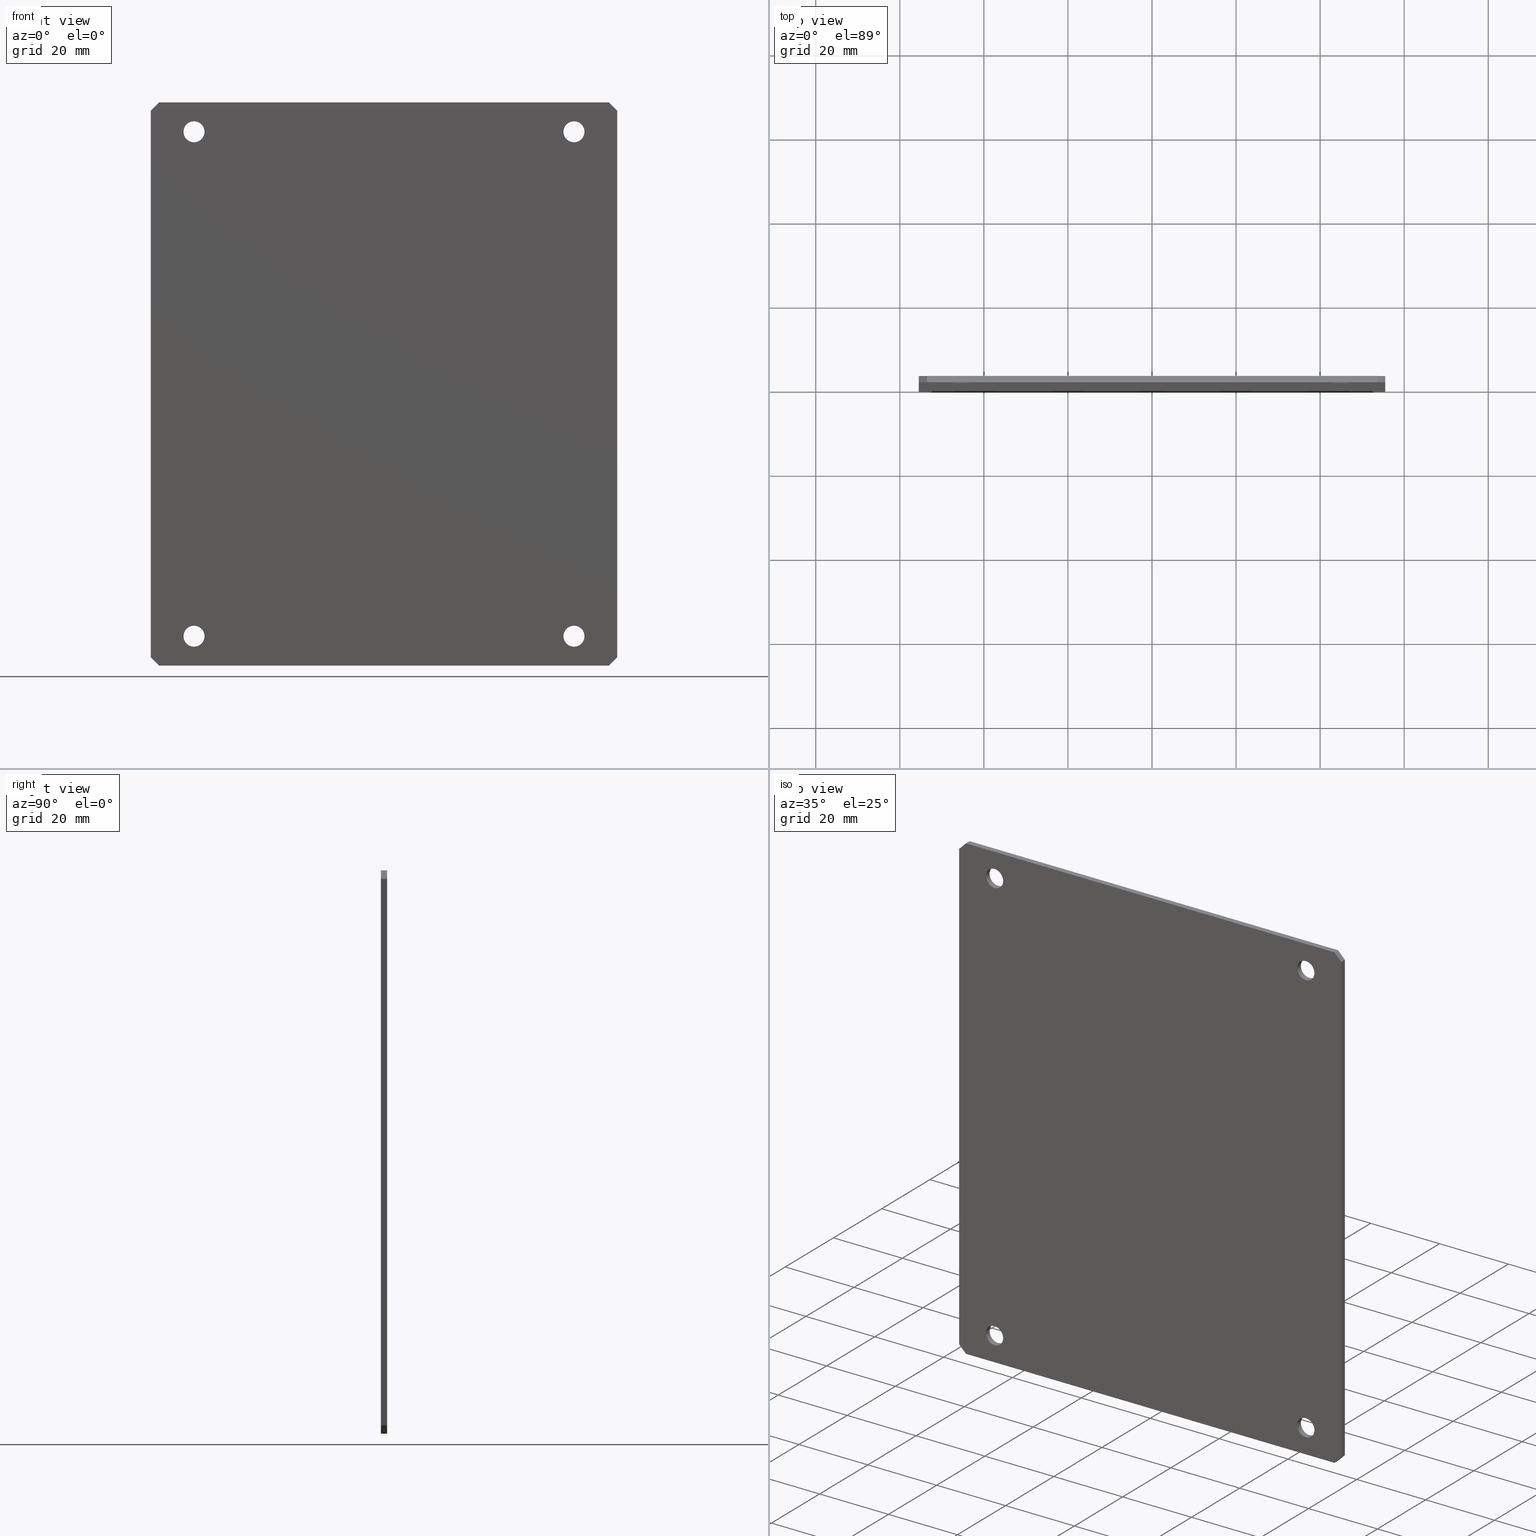
[diagram: canonical four-view strip — front | top / right | iso, engineering-drawing reading convention]
A machine part, canonical four-view strip (front | top / right | iso — engineering-drawing reading convention). The complete STEP part file that produces these views, byte-faithful:
ISO-10303-21;
HEADER;
FILE_DESCRIPTION (( 'STEP AP214' ),
    '1' );
FILE_NAME ('TM 1216.STEP',
    '2010-02-17T12:26:09',
    ( 'KennethW' ),
    ( 'FIBOX' ),
    'SwSTEP 2.0',
    'SolidWorks 2009',
    '' );
FILE_SCHEMA (( 'AUTOMOTIVE_DESIGN' ));
ENDSEC;

DATA;
#1 = ORIENTED_EDGE ( 'NONE', *, *, #64, .T. ) ;
#2 = ORIENTED_EDGE ( 'NONE', *, *, #88, .F. ) ;
#3 = EDGE_CURVE ( 'NONE', #31, #138, #164, .T. ) ;
#4 = EDGE_LOOP ( 'NONE', ( #5, #6 ) ) ;
#5 = ORIENTED_EDGE ( 'NONE', *, *, #37, .T. ) ;
#6 = ORIENTED_EDGE ( 'NONE', *, *, #7, .T. ) ;
#7 = EDGE_CURVE ( 'NONE', #35, #38, #322, .T. ) ;
#8 = EDGE_LOOP ( 'NONE', ( #372, #267, #182, #300 ) ) ;
#9 = EDGE_CURVE ( 'NONE', #10, #11, #323, .T. ) ;
#10 = VERTEX_POINT ( 'NONE', #315 ) ;
#11 = VERTEX_POINT ( 'NONE', #314 ) ;
#12 = ORIENTED_EDGE ( 'NONE', *, *, #13, .F. ) ;
#13 = EDGE_CURVE ( 'NONE', #14, #10, #313, .T. ) ;
#14 = VERTEX_POINT ( 'NONE', #309 ) ;
#15 = ORIENTED_EDGE ( 'NONE', *, *, #16, .F. ) ;
#16 = EDGE_CURVE ( 'NONE', #17, #14, #308, .T. ) ;
#17 = VERTEX_POINT ( 'NONE', #304 ) ;
#18 = ORIENTED_EDGE ( 'NONE', *, *, #19, .F. ) ;
#19 = EDGE_CURVE ( 'NONE', #20, #17, #303, .T. ) ;
#20 = VERTEX_POINT ( 'NONE', #368 ) ;
#21 = ORIENTED_EDGE ( 'NONE', *, *, #185, .F. ) ;
#22 = VERTEX_POINT ( 'NONE', #367 ) ;
#23 = ADVANCED_FACE ( 'NONE', ( #366 ), #365, .F. ) ;
#24 = EDGE_LOOP ( 'NONE', ( #25, #29, #135, #139 ) ) ;
#25 = ORIENTED_EDGE ( 'NONE', *, *, #26, .T. ) ;
#26 = EDGE_CURVE ( 'NONE', #27, #28, #359, .T. ) ;
#27 = VERTEX_POINT ( 'NONE', #360 ) ;
#28 = VERTEX_POINT ( 'NONE', #266 ) ;
#29 = ORIENTED_EDGE ( 'NONE', *, *, #30, .T. ) ;
#30 = EDGE_CURVE ( 'NONE', #28, #31, #265, .T. ) ;
#31 = VERTEX_POINT ( 'NONE', #261 ) ;
#32 = EDGE_LOOP ( 'NONE', ( #155, #159, #36, #39 ) ) ;
#33 = MANIFOLD_SOLID_BREP ( 'NONE', #337 ) ;
#34 = EDGE_CURVE ( 'NONE', #158, #35, #245, .T. ) ;
#35 = VERTEX_POINT ( 'NONE', #296 ) ;
#36 = ORIENTED_EDGE ( 'NONE', *, *, #37, .F. ) ;
#37 = EDGE_CURVE ( 'NONE', #38, #35, #295, .T. ) ;
#38 = VERTEX_POINT ( 'NONE', #290 ) ;
#39 = ORIENTED_EDGE ( 'NONE', *, *, #40, .F. ) ;
#40 = EDGE_CURVE ( 'NONE', #157, #38, #289, .T. ) ;
#41 = ADVANCED_FACE ( 'NONE', ( #285 ), #283, .F. ) ;
#42 = ADVANCED_FACE ( 'NONE', ( #284 ), #278, .F. ) ;
#43 = EDGE_LOOP ( 'NONE', ( #44, #45, #47, #48 ) ) ;
#44 = ORIENTED_EDGE ( 'NONE', *, *, #220, .T. ) ;
#45 = ORIENTED_EDGE ( 'NONE', *, *, #46, .F. ) ;
#46 = EDGE_CURVE ( 'NONE', #160, #22, #273, .T. ) ;
#47 = ORIENTED_EDGE ( 'NONE', *, *, #91, .F. ) ;
#48 = ORIENTED_EDGE ( 'NONE', *, *, #71, .T. ) ;
#49 = ADVANCED_FACE ( 'NONE', ( #244 ), #243, .F. ) ;
#50 = EDGE_LOOP ( 'NONE', ( #51, #54, #56, #57 ) ) ;
#51 = ORIENTED_EDGE ( 'NONE', *, *, #185, .T. ) ;
#52 = EDGE_CURVE ( 'NONE', #79, #93, #237, .T. ) ;
#53 = EDGE_LOOP ( 'NONE', ( #183, #184 ) ) ;
#54 = ORIENTED_EDGE ( 'NONE', *, *, #55, .F. ) ;
#55 = EDGE_CURVE ( 'NONE', #101, #20, #233, .T. ) ;
#56 = ORIENTED_EDGE ( 'NONE', *, *, #100, .F. ) ;
#57 = ORIENTED_EDGE ( 'NONE', *, *, #46, .T. ) ;
#58 = ADVANCED_FACE ( 'NONE', ( #229 ), #228, .F. ) ;
#59 = EDGE_LOOP ( 'NONE', ( #169, #170, #166, #167 ) ) ;
#60 = EDGE_CURVE ( 'NONE', #148, #151, #219, .T. ) ;
#61 = ADVANCED_FACE ( 'NONE', ( #214 ), #213, .F. ) ;
#62 = ORIENTED_EDGE ( 'NONE', *, *, #74, .T. ) ;
#63 = ORIENTED_EDGE ( 'NONE', *, *, #64, .F. ) ;
#64 = EDGE_CURVE ( 'NONE', #86, #181, #348, .T. ) ;
#65 = ORIENTED_EDGE ( 'NONE', *, *, #123, .F. ) ;
#66 = ORIENTED_EDGE ( 'NONE', *, *, #371, .T. ) ;
#67 = ADVANCED_FACE ( 'NONE', ( #344 ), #343, .F. ) ;
#68 = EDGE_LOOP ( 'NONE', ( #69, #70, #2, #1 ) ) ;
#69 = ORIENTED_EDGE ( 'NONE', *, *, #223, .T. ) ;
#70 = ORIENTED_EDGE ( 'NONE', *, *, #71, .F. ) ;
#71 = EDGE_CURVE ( 'NONE', #89, #221, #202, .T. ) ;
#72 = ORIENTED_EDGE ( 'NONE', *, *, #60, .T. ) ;
#73 = ORIENTED_EDGE ( 'NONE', *, *, #74, .F. ) ;
#74 = EDGE_CURVE ( 'NONE', #11, #181, #197, .T. ) ;
#75 = EDGE_LOOP ( 'NONE', ( #76, #77 ) ) ;
#76 = ORIENTED_EDGE ( 'NONE', *, *, #81, .T. ) ;
#77 = ORIENTED_EDGE ( 'NONE', *, *, #3, .T. ) ;
#78 = ADVANCED_FACE ( 'NONE', ( #408, #383, #396, #410, #385 ), #401, .F. ) ;
#79 = VERTEX_POINT ( 'NONE', #391 ) ;
#80 = ORIENTED_EDGE ( 'NONE', *, *, #129, .T. ) ;
#81 = EDGE_CURVE ( 'NONE', #138, #31, #389, .T. ) ;
#82 = ORIENTED_EDGE ( 'NONE', *, *, #126, .F. ) ;
#83 = EDGE_LOOP ( 'NONE', ( #127, #122, #87, #90, #161, #102, #105, #108 ) ) ;
#84 = ADVANCED_FACE ( 'NONE', ( #390 ), #382, .F. ) ;
#85 = EDGE_CURVE ( 'NONE', #137, #79, #405, .T. ) ;
#86 = VERTEX_POINT ( 'NONE', #380 ) ;
#87 = ORIENTED_EDGE ( 'NONE', *, *, #88, .T. ) ;
#88 = EDGE_CURVE ( 'NONE', #86, #89, #379, .T. ) ;
#89 = VERTEX_POINT ( 'NONE', #375 ) ;
#90 = ORIENTED_EDGE ( 'NONE', *, *, #91, .T. ) ;
#91 = EDGE_CURVE ( 'NONE', #89, #160, #395, .T. ) ;
#92 = EDGE_CURVE ( 'NONE', #93, #79, #198, .T. ) ;
#93 = VERTEX_POINT ( 'NONE', #420 ) ;
#94 = EDGE_CURVE ( 'NONE', #28, #27, #429, .T. ) ;
#95 = ORIENTED_EDGE ( 'NONE', *, *, #156, .F. ) ;
#96 = ORIENTED_EDGE ( 'NONE', *, *, #97, .F. ) ;
#97 = EDGE_CURVE ( 'NONE', #158, #157, #424, .T. ) ;
#98 = PRODUCT_DEFINITION_CONTEXT ( 'detailed design', #419, 'design' ) ;
#99 = EDGE_LOOP ( 'NONE', ( #115, #72 ) ) ;
#100 = EDGE_CURVE ( 'NONE', #160, #101, #630, .T. ) ;
#101 = VERTEX_POINT ( 'NONE', #626 ) ;
#102 = ORIENTED_EDGE ( 'NONE', *, *, #103, .T. ) ;
#103 = EDGE_CURVE ( 'NONE', #101, #104, #625, .T. ) ;
#104 = VERTEX_POINT ( 'NONE', #621 ) ;
#105 = ORIENTED_EDGE ( 'NONE', *, *, #106, .T. ) ;
#106 = EDGE_CURVE ( 'NONE', #104, #107, #620, .T. ) ;
#107 = VERTEX_POINT ( 'NONE', #616 ) ;
#108 = ORIENTED_EDGE ( 'NONE', *, *, #109, .T. ) ;
#109 = EDGE_CURVE ( 'NONE', #107, #120, #615, .T. ) ;
#110 = EDGE_LOOP ( 'NONE', ( #111, #112 ) ) ;
#111 = ORIENTED_EDGE ( 'NONE', *, *, #26, .F. ) ;
#112 = ORIENTED_EDGE ( 'NONE', *, *, #94, .F. ) ;
#113 = EDGE_LOOP ( 'NONE', ( #95, #96 ) ) ;
#114 = ADVANCED_FACE ( 'NONE', ( #611, #610, #609, #608, #607 ), #606, .T. ) ;
#115 = ORIENTED_EDGE ( 'NONE', *, *, #150, .T. ) ;
#116 = ORIENTED_EDGE ( 'NONE', *, *, #92, .F. ) ;
#117 = EDGE_LOOP ( 'NONE', ( #118, #82 ) ) ;
#118 = ORIENTED_EDGE ( 'NONE', *, *, #129, .F. ) ;
#119 = ORIENTED_EDGE ( 'NONE', *, *, #140, .F. ) ;
#120 = VERTEX_POINT ( 'NONE', #601 ) ;
#121 = VERTEX_POINT ( 'NONE', #600 ) ;
#122 = ORIENTED_EDGE ( 'NONE', *, *, #123, .T. ) ;
#123 = EDGE_CURVE ( 'NONE', #121, #86, #568, .T. ) ;
#124 = ORIENTED_EDGE ( 'NONE', *, *, #125, .F. ) ;
#125 = EDGE_CURVE ( 'NONE', #145, #144, #564, .T. ) ;
#126 = EDGE_CURVE ( 'NONE', #137, #136, #559, .T. ) ;
#127 = ORIENTED_EDGE ( 'NONE', *, *, #128, .T. ) ;
#128 = EDGE_CURVE ( 'NONE', #120, #121, #554, .T. ) ;
#129 = EDGE_CURVE ( 'NONE', #136, #137, #550, .T. ) ;
#130 = EDGE_CURVE ( 'NONE', #27, #138, #545, .T. ) ;
#131 = ORIENTED_EDGE ( 'NONE', *, *, #85, .T. ) ;
#132 = EDGE_LOOP ( 'NONE', ( #80, #131, #116, #119 ) ) ;
#133 = EDGE_LOOP ( 'NONE', ( #134, #124 ) ) ;
#134 = ORIENTED_EDGE ( 'NONE', *, *, #143, .F. ) ;
#135 = ORIENTED_EDGE ( 'NONE', *, *, #81, .F. ) ;
#136 = VERTEX_POINT ( 'NONE', #541 ) ;
#137 = VERTEX_POINT ( 'NONE', #540 ) ;
#138 = VERTEX_POINT ( 'NONE', #539 ) ;
#139 = ORIENTED_EDGE ( 'NONE', *, *, #130, .F. ) ;
#140 = EDGE_CURVE ( 'NONE', #136, #93, #538, .T. ) ;
#141 = EDGE_LOOP ( 'NONE', ( #142, #146, #149, #152 ) ) ;
#142 = ORIENTED_EDGE ( 'NONE', *, *, #143, .T. ) ;
#143 = EDGE_CURVE ( 'NONE', #144, #145, #597, .T. ) ;
#144 = VERTEX_POINT ( 'NONE', #592 ) ;
#145 = VERTEX_POINT ( 'NONE', #591 ) ;
#146 = ORIENTED_EDGE ( 'NONE', *, *, #147, .T. ) ;
#147 = EDGE_CURVE ( 'NONE', #145, #148, #590, .T. ) ;
#148 = VERTEX_POINT ( 'NONE', #586 ) ;
#149 = ORIENTED_EDGE ( 'NONE', *, *, #150, .F. ) ;
#150 = EDGE_CURVE ( 'NONE', #151, #148, #585, .T. ) ;
#151 = VERTEX_POINT ( 'NONE', #580 ) ;
#152 = ORIENTED_EDGE ( 'NONE', *, *, #153, .F. ) ;
#153 = EDGE_CURVE ( 'NONE', #144, #151, #579, .T. ) ;
#154 = ADVANCED_FACE ( 'NONE', ( #575 ), #574, .F. ) ;
#155 = ORIENTED_EDGE ( 'NONE', *, *, #156, .T. ) ;
#156 = EDGE_CURVE ( 'NONE', #157, #158, #569, .T. ) ;
#157 = VERTEX_POINT ( 'NONE', #439 ) ;
#158 = VERTEX_POINT ( 'NONE', #438 ) ;
#159 = ORIENTED_EDGE ( 'NONE', *, *, #34, .T. ) ;
#160 = VERTEX_POINT ( 'NONE', #437 ) ;
#161 = ORIENTED_EDGE ( 'NONE', *, *, #100, .T. ) ;
#162 = CARTESIAN_POINT ( 'NONE',  ( 45.20000000000000300, 0.0000000000000000000, -59.99999999999999300 ) ) ;
#163 = AXIS2_PLACEMENT_3D ( 'NONE', #162, #325, #324 ) ;
#164 = CIRCLE ( 'NONE', #163, 2.500000000000002200 ) ;
#165 = CARTESIAN_POINT ( 'NONE',  ( -45.20000000000000300, 0.0000000000000000000, 60.00000000000000700 ) ) ;
#166 = ORIENTED_EDGE ( 'NONE', *, *, #103, .F. ) ;
#167 = ORIENTED_EDGE ( 'NONE', *, *, #55, .T. ) ;
#168 = EDGE_LOOP ( 'NONE', ( #329, #330, #332, #333 ) ) ;
#169 = ORIENTED_EDGE ( 'NONE', *, *, #19, .T. ) ;
#170 = ORIENTED_EDGE ( 'NONE', *, *, #171, .F. ) ;
#171 = EDGE_CURVE ( 'NONE', #104, #17, #436, .T. ) ;
#172 = ORIENTED_EDGE ( 'NONE', *, *, #130, .T. ) ;
#173 = ORIENTED_EDGE ( 'NONE', *, *, #3, .F. ) ;
#174 = ADVANCED_FACE ( 'NONE', ( #432 ), #535, .F. ) ;
#175 = EDGE_LOOP ( 'NONE', ( #176, #177, #178, #179 ) ) ;
#176 = ORIENTED_EDGE ( 'NONE', *, *, #147, .F. ) ;
#177 = ORIENTED_EDGE ( 'NONE', *, *, #125, .T. ) ;
#178 = ORIENTED_EDGE ( 'NONE', *, *, #153, .T. ) ;
#179 = ORIENTED_EDGE ( 'NONE', *, *, #60, .F. ) ;
#180 = ADVANCED_FACE ( 'NONE', ( #536 ), #531, .F. ) ;
#181 = VERTEX_POINT ( 'NONE', #529 ) ;
#182 = ORIENTED_EDGE ( 'NONE', *, *, #128, .F. ) ;
#183 = ORIENTED_EDGE ( 'NONE', *, *, #92, .T. ) ;
#184 = ORIENTED_EDGE ( 'NONE', *, *, #52, .T. ) ;
#185 = EDGE_CURVE ( 'NONE', #22, #20, #525, .T. ) ;
#186 = ORIENTED_EDGE ( 'NONE', *, *, #220, .F. ) ;
#187 = EDGE_LOOP ( 'NONE', ( #188, #189, #190, #191 ) ) ;
#188 = ORIENTED_EDGE ( 'NONE', *, *, #85, .F. ) ;
#189 = ORIENTED_EDGE ( 'NONE', *, *, #126, .T. ) ;
#190 = ORIENTED_EDGE ( 'NONE', *, *, #140, .T. ) ;
#191 = ORIENTED_EDGE ( 'NONE', *, *, #52, .F. ) ;
#192 = CARTESIAN_POINT ( 'NONE',  ( -45.20000000000000300, 0.0000000000000000000, -59.99999999999999300 ) ) ;
#193 = AXIS2_PLACEMENT_3D ( 'NONE', #192, #373, #374 ) ;
#194 = DIRECTION ( 'NONE',  ( -0.0000000000000000000, -0.0000000000000000000, 1.000000000000000000 ) ) ;
#195 = VECTOR ( 'NONE', #194, 1000.000000000000000 ) ;
#196 = CARTESIAN_POINT ( 'NONE',  ( -55.49999999999999300, 0.0000000000000000000, 65.00000000000000000 ) ) ;
#197 = LINE ( 'NONE', #196, #195 ) ;
#198 = CIRCLE ( 'NONE', #193, 2.500000000000002200 ) ;
#199 = DIRECTION ( 'NONE',  ( -0.0000000000000000000, -1.000000000000000000, -0.0000000000000000000 ) ) ;
#200 = VECTOR ( 'NONE', #199, 1000.000000000000000 ) ;
#201 = CARTESIAN_POINT ( 'NONE',  ( -53.49999999999999300, 1.500000000000000000, 67.00000000000000000 ) ) ;
#202 = LINE ( 'NONE', #201, #200 ) ;
#203 = EDGE_LOOP ( 'NONE', ( #204, #205, #206, #207 ) ) ;
#204 = ORIENTED_EDGE ( 'NONE', *, *, #13, .T. ) ;
#205 = ORIENTED_EDGE ( 'NONE', *, *, #301, .F. ) ;
#206 = ORIENTED_EDGE ( 'NONE', *, *, #109, .F. ) ;
#207 = ORIENTED_EDGE ( 'NONE', *, *, #331, .T. ) ;
#208 = ADVANCED_FACE ( 'NONE', ( #521 ), #520, .F. ) ;
#209 = DIRECTION ( 'NONE',  ( 0.0000000000000000000, 0.0000000000000000000, -1.000000000000000000 ) ) ;
#210 = DIRECTION ( 'NONE',  ( 1.000000000000000000, -0.0000000000000000000, 0.0000000000000000000 ) ) ;
#211 = CARTESIAN_POINT ( 'NONE',  ( -55.49999999999999300, 1.500000000000000000, 65.00000000000000000 ) ) ;
#212 = AXIS2_PLACEMENT_3D ( 'NONE', #211, #210, #209 ) ;
#213 = PLANE ( 'NONE',  #212 ) ;
#214 = FACE_OUTER_BOUND ( 'NONE', #268, .T. ) ;
#215 = DIRECTION ( 'NONE',  ( 0.0000000000000000000, 0.0000000000000000000, 1.000000000000000000 ) ) ;
#216 = DIRECTION ( 'NONE',  ( 0.0000000000000000000, 1.000000000000000000, 0.0000000000000000000 ) ) ;
#217 = CARTESIAN_POINT ( 'NONE',  ( 45.20000000000000300, 0.0000000000000000000, 60.00000000000000700 ) ) ;
#218 = AXIS2_PLACEMENT_3D ( 'NONE', #217, #216, #215 ) ;
#219 = CIRCLE ( 'NONE', #218, 2.500000000000009300 ) ;
#220 = EDGE_CURVE ( 'NONE', #221, #22, #515, .T. ) ;
#221 = VERTEX_POINT ( 'NONE', #511 ) ;
#222 = ORIENTED_EDGE ( 'NONE', *, *, #223, .F. ) ;
#223 = EDGE_CURVE ( 'NONE', #181, #221, #510, .T. ) ;
#224 = DIRECTION ( 'NONE',  ( 0.0000000000000000000, 0.0000000000000000000, 1.000000000000000000 ) ) ;
#225 = DIRECTION ( 'NONE',  ( -1.000000000000000000, 0.0000000000000000000, 0.0000000000000000000 ) ) ;
#226 = CARTESIAN_POINT ( 'NONE',  ( 55.49999999999999300, 1.500000000000000000, 65.00000000000001400 ) ) ;
#227 = AXIS2_PLACEMENT_3D ( 'NONE', #226, #225, #224 ) ;
#228 = PLANE ( 'NONE',  #227 ) ;
#229 = FACE_OUTER_BOUND ( 'NONE', #59, .T. ) ;
#230 = DIRECTION ( 'NONE',  ( -0.0000000000000000000, -1.000000000000000000, -0.0000000000000000000 ) ) ;
#231 = VECTOR ( 'NONE', #230, 1000.000000000000000 ) ;
#232 = CARTESIAN_POINT ( 'NONE',  ( 55.49999999999999300, 1.500000000000000000, 65.00000000000001400 ) ) ;
#233 = LINE ( 'NONE', #232, #231 ) ;
#234 = DIRECTION ( 'NONE',  ( 0.0000000000000000000, 0.0000000000000000000, 1.000000000000000000 ) ) ;
#235 = DIRECTION ( 'NONE',  ( 0.0000000000000000000, 1.000000000000000000, 0.0000000000000000000 ) ) ;
#236 = AXIS2_PLACEMENT_3D ( 'NONE', #241, #235, #234 ) ;
#237 = CIRCLE ( 'NONE', #236, 2.500000000000002200 ) ;
#238 = DIRECTION ( 'NONE',  ( -0.7071067811865500200, 0.0000000000000000000, 0.7071067811865451300 ) ) ;
#239 = DIRECTION ( 'NONE',  ( -0.7071067811865451300, 0.0000000000000000000, -0.7071067811865500200 ) ) ;
#240 = CARTESIAN_POINT ( 'NONE',  ( 55.49999999999999300, 1.500000000000000000, 65.00000000000001400 ) ) ;
#241 = CARTESIAN_POINT ( 'NONE',  ( -45.20000000000000300, 0.0000000000000000000, -59.99999999999999300 ) ) ;
#242 = AXIS2_PLACEMENT_3D ( 'NONE', #240, #239, #238 ) ;
#243 = PLANE ( 'NONE',  #242 ) ;
#244 = FACE_OUTER_BOUND ( 'NONE', #50, .T. ) ;
#245 = LINE ( 'NONE', #299, #298 ) ;
#246 =( GEOMETRIC_REPRESENTATION_CONTEXT ( 3 ) GLOBAL_UNCERTAINTY_ASSIGNED_CONTEXT ( ( #247 ) ) GLOBAL_UNIT_ASSIGNED_CONTEXT ( ( #250, #249, #248 ) ) REPRESENTATION_CONTEXT ( 'NONE', 'WORKASPACE' ) );
#247 = UNCERTAINTY_MEASURE_WITH_UNIT (LENGTH_MEASURE( 1.000000000000000100E-005 ), #250, 'distance_accuracy_value', 'NONE');
#248 =( NAMED_UNIT ( * ) SI_UNIT ( $, .STERADIAN. ) SOLID_ANGLE_UNIT ( ) );
#249 =( NAMED_UNIT ( * ) PLANE_ANGLE_UNIT ( ) SI_UNIT ( $, .RADIAN. ) );
#250 =( LENGTH_UNIT ( ) NAMED_UNIT ( * ) SI_UNIT ( .MILLI., .METRE. ) );
#251 = MECHANICAL_DESIGN_GEOMETRIC_PRESENTATION_REPRESENTATION (  '', ( #253 ), #246 ) ;
#252 = PRESENTATION_LAYER_ASSIGNMENT (  '', '', ( #253 ) ) ;
#253 = STYLED_ITEM ( 'NONE', ( #254 ), #33 ) ;
#254 = PRESENTATION_STYLE_ASSIGNMENT (( #255 ) ) ;
#255 = SURFACE_STYLE_USAGE ( .BOTH. , #256 ) ;
#256 = SURFACE_SIDE_STYLE ('',( #257 ) ) ;
#257 = SURFACE_STYLE_FILL_AREA ( #258 ) ;
#258 = FILL_AREA_STYLE ('',( #259 ) ) ;
#259 = FILL_AREA_STYLE_COLOUR ( '', #260 ) ;
#260 = COLOUR_RGB ( '',0.7529411764705882200, 0.7529411764705882200, 0.7529411764705882200 ) ;
#261 = CARTESIAN_POINT ( 'NONE',  ( 45.20000000000000300, 0.0000000000000000000, -57.49999999999998600 ) ) ;
#262 = DIRECTION ( 'NONE',  ( -0.0000000000000000000, -1.000000000000000000, -0.0000000000000000000 ) ) ;
#263 = VECTOR ( 'NONE', #262, 1000.000000000000000 ) ;
#264 = CARTESIAN_POINT ( 'NONE',  ( 45.20000000000000300, 1.500000000000000000, -57.49999999999998600 ) ) ;
#265 = LINE ( 'NONE', #264, #263 ) ;
#266 = CARTESIAN_POINT ( 'NONE',  ( 45.20000000000000300, 1.500000000000000000, -57.49999999999998600 ) ) ;
#267 = ORIENTED_EDGE ( 'NONE', *, *, #371, .F. ) ;
#268 = EDGE_LOOP ( 'NONE', ( #62, #63, #65, #66 ) ) ;
#269 = EDGE_LOOP ( 'NONE', ( #338, #12, #15, #18, #21, #186, #222, #73 ) ) ;
#270 = DIRECTION ( 'NONE',  ( -0.0000000000000000000, -1.000000000000000000, -0.0000000000000000000 ) ) ;
#271 = VECTOR ( 'NONE', #270, 1000.000000000000000 ) ;
#272 = CARTESIAN_POINT ( 'NONE',  ( 53.49999999999999300, 1.500000000000000000, 67.00000000000000000 ) ) ;
#273 = LINE ( 'NONE', #272, #271 ) ;
#274 = DIRECTION ( 'NONE',  ( -1.000000000000000000, 0.0000000000000000000, -0.0000000000000000000 ) ) ;
#275 = DIRECTION ( 'NONE',  ( 0.0000000000000000000, 0.0000000000000000000, -1.000000000000000000 ) ) ;
#276 = CARTESIAN_POINT ( 'NONE',  ( 53.49999999999999300, 1.500000000000000000, 67.00000000000000000 ) ) ;
#277 = AXIS2_PLACEMENT_3D ( 'NONE', #276, #275, #274 ) ;
#278 = PLANE ( 'NONE',  #277 ) ;
#279 = DIRECTION ( 'NONE',  ( 0.0000000000000000000, 0.0000000000000000000, -1.000000000000000000 ) ) ;
#280 = DIRECTION ( 'NONE',  ( -0.0000000000000000000, -1.000000000000000000, -0.0000000000000000000 ) ) ;
#281 = CARTESIAN_POINT ( 'NONE',  ( 45.20000000000000300, 1.500000000000000000, 60.00000000000000700 ) ) ;
#282 = AXIS2_PLACEMENT_3D ( 'NONE', #281, #280, #279 ) ;
#283 = CYLINDRICAL_SURFACE ( 'NONE', #282, 2.500000000000002200 ) ;
#284 = FACE_OUTER_BOUND ( 'NONE', #43, .T. ) ;
#285 = FACE_OUTER_BOUND ( 'NONE', #141, .T. ) ;
#286 = DIRECTION ( 'NONE',  ( -0.0000000000000000000, -1.000000000000000000, -0.0000000000000000000 ) ) ;
#287 = VECTOR ( 'NONE', #286, 1000.000000000000000 ) ;
#288 = CARTESIAN_POINT ( 'NONE',  ( -45.20000000000000300, 1.500000000000000000, 57.50000000000000000 ) ) ;
#289 = LINE ( 'NONE', #288, #287 ) ;
#290 = CARTESIAN_POINT ( 'NONE',  ( -45.20000000000000300, 0.0000000000000000000, 57.50000000000000000 ) ) ;
#291 = DIRECTION ( 'NONE',  ( 0.0000000000000000000, 0.0000000000000000000, -1.000000000000000000 ) ) ;
#292 = DIRECTION ( 'NONE',  ( -0.0000000000000000000, 1.000000000000000000, -0.0000000000000000000 ) ) ;
#293 = CARTESIAN_POINT ( 'NONE',  ( -45.20000000000000300, 0.0000000000000000000, 60.00000000000000700 ) ) ;
#294 = AXIS2_PLACEMENT_3D ( 'NONE', #293, #292, #291 ) ;
#295 = CIRCLE ( 'NONE', #294, 2.500000000000002200 ) ;
#296 = CARTESIAN_POINT ( 'NONE',  ( -45.20000000000000300, 0.0000000000000000000, 62.50000000000001400 ) ) ;
#297 = DIRECTION ( 'NONE',  ( -0.0000000000000000000, -1.000000000000000000, -0.0000000000000000000 ) ) ;
#298 = VECTOR ( 'NONE', #297, 1000.000000000000000 ) ;
#299 = CARTESIAN_POINT ( 'NONE',  ( -45.20000000000000300, 1.500000000000000000, 62.50000000000001400 ) ) ;
#300 = ORIENTED_EDGE ( 'NONE', *, *, #301, .T. ) ;
#301 = EDGE_CURVE ( 'NONE', #120, #10, #476, .T. ) ;
#302 = CARTESIAN_POINT ( 'NONE',  ( 55.49999999999999300, 0.0000000000000000000, 65.00000000000001400 ) ) ;
#303 = LINE ( 'NONE', #302, #370 ) ;
#304 = CARTESIAN_POINT ( 'NONE',  ( 55.49999999999999300, 0.0000000000000000000, -65.00000000000001400 ) ) ;
#305 = DIRECTION ( 'NONE',  ( -0.7071067811865500200, 0.0000000000000000000, -0.7071067811865451300 ) ) ;
#306 = VECTOR ( 'NONE', #305, 1000.000000000000100 ) ;
#307 = CARTESIAN_POINT ( 'NONE',  ( 55.49999999999999300, 0.0000000000000000000, -65.00000000000001400 ) ) ;
#308 = LINE ( 'NONE', #307, #306 ) ;
#309 = CARTESIAN_POINT ( 'NONE',  ( 53.49999999999999300, 0.0000000000000000000, -67.00000000000000000 ) ) ;
#310 = DIRECTION ( 'NONE',  ( -1.000000000000000000, 0.0000000000000000000, 0.0000000000000000000 ) ) ;
#311 = VECTOR ( 'NONE', #310, 1000.000000000000000 ) ;
#312 = CARTESIAN_POINT ( 'NONE',  ( 53.49999999999999300, 0.0000000000000000000, -67.00000000000000000 ) ) ;
#313 = LINE ( 'NONE', #312, #311 ) ;
#314 = CARTESIAN_POINT ( 'NONE',  ( -55.49999999999999300, 0.0000000000000000000, -65.00000000000000000 ) ) ;
#315 = CARTESIAN_POINT ( 'NONE',  ( -53.49999999999999300, 0.0000000000000000000, -67.00000000000000000 ) ) ;
#316 = DIRECTION ( 'NONE',  ( -0.7071067811865474600, -0.0000000000000000000, 0.7071067811865474600 ) ) ;
#317 = VECTOR ( 'NONE', #316, 1000.000000000000100 ) ;
#318 = CARTESIAN_POINT ( 'NONE',  ( -55.49999999999999300, 0.0000000000000000000, -65.00000000000000000 ) ) ;
#319 = DIRECTION ( 'NONE',  ( 0.0000000000000000000, 0.0000000000000000000, -1.000000000000000000 ) ) ;
#320 = DIRECTION ( 'NONE',  ( -0.0000000000000000000, 1.000000000000000000, -0.0000000000000000000 ) ) ;
#321 = AXIS2_PLACEMENT_3D ( 'NONE', #165, #320, #319 ) ;
#322 = CIRCLE ( 'NONE', #321, 2.500000000000002200 ) ;
#323 = LINE ( 'NONE', #318, #317 ) ;
#324 = DIRECTION ( 'NONE',  ( 0.0000000000000000000, 0.0000000000000000000, -1.000000000000000000 ) ) ;
#325 = DIRECTION ( 'NONE',  ( -0.0000000000000000000, 1.000000000000000000, -0.0000000000000000000 ) ) ;
#326 = EDGE_LOOP ( 'NONE', ( #327, #354, #335, #336 ) ) ;
#327 = ORIENTED_EDGE ( 'NONE', *, *, #34, .F. ) ;
#328 = ADVANCED_FACE ( 'NONE', ( #472 ), #471, .F. ) ;
#329 = ORIENTED_EDGE ( 'NONE', *, *, #16, .T. ) ;
#330 = ORIENTED_EDGE ( 'NONE', *, *, #331, .F. ) ;
#331 = EDGE_CURVE ( 'NONE', #107, #14, #469, .T. ) ;
#332 = ORIENTED_EDGE ( 'NONE', *, *, #106, .F. ) ;
#333 = ORIENTED_EDGE ( 'NONE', *, *, #171, .T. ) ;
#334 = ADVANCED_FACE ( 'NONE', ( #462 ), #460, .F. ) ;
#335 = ORIENTED_EDGE ( 'NONE', *, *, #40, .T. ) ;
#336 = ORIENTED_EDGE ( 'NONE', *, *, #7, .F. ) ;
#337 = CLOSED_SHELL ( 'NONE', ( #154, #41, #23, #84, #78, #114, #349, #61, #67, #42, #49, #58, #328, #334, #208, #350, #174, #180 ) ) ;
#338 = ORIENTED_EDGE ( 'NONE', *, *, #9, .F. ) ;
#339 = DIRECTION ( 'NONE',  ( -0.7071067811865474600, 0.0000000000000000000, -0.7071067811865474600 ) ) ;
#340 = DIRECTION ( 'NONE',  ( 0.7071067811865475700, 0.0000000000000000000, -0.7071067811865475700 ) ) ;
#341 = CARTESIAN_POINT ( 'NONE',  ( -55.49999999999999300, 1.500000000000000000, 65.00000000000000000 ) ) ;
#342 = AXIS2_PLACEMENT_3D ( 'NONE', #341, #340, #339 ) ;
#343 = PLANE ( 'NONE',  #342 ) ;
#344 = FACE_OUTER_BOUND ( 'NONE', #68, .T. ) ;
#345 = DIRECTION ( 'NONE',  ( -0.0000000000000000000, -1.000000000000000000, -0.0000000000000000000 ) ) ;
#346 = VECTOR ( 'NONE', #345, 1000.000000000000000 ) ;
#347 = CARTESIAN_POINT ( 'NONE',  ( -55.49999999999999300, 1.500000000000000000, 65.00000000000000000 ) ) ;
#348 = LINE ( 'NONE', #347, #346 ) ;
#349 = ADVANCED_FACE ( 'NONE', ( #455 ), #461, .F. ) ;
#350 = ADVANCED_FACE ( 'NONE', ( #450 ), #449, .F. ) ;
#351 = EDGE_LOOP ( 'NONE', ( #352, #353, #172, #173 ) ) ;
#352 = ORIENTED_EDGE ( 'NONE', *, *, #30, .F. ) ;
#353 = ORIENTED_EDGE ( 'NONE', *, *, #94, .T. ) ;
#354 = ORIENTED_EDGE ( 'NONE', *, *, #97, .T. ) ;
#355 = DIRECTION ( 'NONE',  ( 0.0000000000000000000, 0.0000000000000000000, -1.000000000000000000 ) ) ;
#356 = DIRECTION ( 'NONE',  ( -0.0000000000000000000, 1.000000000000000000, -0.0000000000000000000 ) ) ;
#357 = CARTESIAN_POINT ( 'NONE',  ( 45.20000000000000300, 1.500000000000000000, -59.99999999999999300 ) ) ;
#358 = AXIS2_PLACEMENT_3D ( 'NONE', #357, #356, #355 ) ;
#359 = CIRCLE ( 'NONE', #358, 2.500000000000002200 ) ;
#360 = CARTESIAN_POINT ( 'NONE',  ( 45.20000000000000300, 1.500000000000000000, -62.49999999999999300 ) ) ;
#361 = DIRECTION ( 'NONE',  ( 0.0000000000000000000, 0.0000000000000000000, -1.000000000000000000 ) ) ;
#362 = DIRECTION ( 'NONE',  ( -0.0000000000000000000, -1.000000000000000000, -0.0000000000000000000 ) ) ;
#363 = CARTESIAN_POINT ( 'NONE',  ( 45.20000000000000300, 1.500000000000000000, -59.99999999999999300 ) ) ;
#364 = AXIS2_PLACEMENT_3D ( 'NONE', #363, #362, #361 ) ;
#365 = CYLINDRICAL_SURFACE ( 'NONE', #364, 2.500000000000002200 ) ;
#366 = FACE_OUTER_BOUND ( 'NONE', #24, .T. ) ;
#367 = CARTESIAN_POINT ( 'NONE',  ( 53.49999999999999300, 0.0000000000000000000, 67.00000000000000000 ) ) ;
#368 = CARTESIAN_POINT ( 'NONE',  ( 55.49999999999999300, 0.0000000000000000000, 65.00000000000001400 ) ) ;
#369 = DIRECTION ( 'NONE',  ( 0.0000000000000000000, 0.0000000000000000000, -1.000000000000000000 ) ) ;
#370 = VECTOR ( 'NONE', #369, 1000.000000000000000 ) ;
#371 = EDGE_CURVE ( 'NONE', #121, #11, #444, .T. ) ;
#372 = ORIENTED_EDGE ( 'NONE', *, *, #9, .T. ) ;
#373 = DIRECTION ( 'NONE',  ( 0.0000000000000000000, 1.000000000000000000, 0.0000000000000000000 ) ) ;
#374 = DIRECTION ( 'NONE',  ( 0.0000000000000000000, 0.0000000000000000000, 1.000000000000000000 ) ) ;
#375 = CARTESIAN_POINT ( 'NONE',  ( -53.49999999999999300, 1.500000000000000000, 67.00000000000000000 ) ) ;
#376 = DIRECTION ( 'NONE',  ( 0.7071067811865474600, 0.0000000000000000000, 0.7071067811865474600 ) ) ;
#377 = VECTOR ( 'NONE', #376, 1000.000000000000100 ) ;
#378 = CARTESIAN_POINT ( 'NONE',  ( -55.49999999999999300, 1.500000000000000000, 65.00000000000000000 ) ) ;
#379 = LINE ( 'NONE', #378, #377 ) ;
#380 = CARTESIAN_POINT ( 'NONE',  ( -55.49999999999999300, 1.500000000000000000, 65.00000000000000000 ) ) ;
#381 = CARTESIAN_POINT ( 'NONE',  ( -120.5000000000000000, 1.500000000000000000, 0.0000000000000000000 ) ) ;
#382 = CYLINDRICAL_SURFACE ( 'NONE', #398, 2.500000000000002200 ) ;
#383 = FACE_BOUND ( 'NONE', #117, .T. ) ;
#384 = AXIS2_PLACEMENT_3D ( 'NONE', #381, #409, #386 ) ;
#385 = FACE_BOUND ( 'NONE', #113, .T. ) ;
#386 = DIRECTION ( 'NONE',  ( 0.0000000000000000000, -0.0000000000000000000, -1.000000000000000000 ) ) ;
#387 = CARTESIAN_POINT ( 'NONE',  ( 45.20000000000000300, 0.0000000000000000000, -59.99999999999999300 ) ) ;
#388 = AXIS2_PLACEMENT_3D ( 'NONE', #387, #400, #399 ) ;
#389 = CIRCLE ( 'NONE', #388, 2.500000000000002200 ) ;
#390 = FACE_OUTER_BOUND ( 'NONE', #132, .T. ) ;
#391 = CARTESIAN_POINT ( 'NONE',  ( -45.20000000000000300, 0.0000000000000000000, -57.49999999999998600 ) ) ;
#392 = DIRECTION ( 'NONE',  ( 1.000000000000000000, -0.0000000000000000000, -0.0000000000000000000 ) ) ;
#393 = VECTOR ( 'NONE', #392, 1000.000000000000000 ) ;
#394 = CARTESIAN_POINT ( 'NONE',  ( 53.49999999999999300, 1.500000000000000000, 67.00000000000000000 ) ) ;
#395 = LINE ( 'NONE', #394, #393 ) ;
#396 = FACE_OUTER_BOUND ( 'NONE', #83, .T. ) ;
#397 = CARTESIAN_POINT ( 'NONE',  ( -45.20000000000000300, 1.500000000000000000, -59.99999999999999300 ) ) ;
#398 = AXIS2_PLACEMENT_3D ( 'NONE', #397, #407, #406 ) ;
#399 = DIRECTION ( 'NONE',  ( 0.0000000000000000000, 0.0000000000000000000, -1.000000000000000000 ) ) ;
#400 = DIRECTION ( 'NONE',  ( -0.0000000000000000000, 1.000000000000000000, -0.0000000000000000000 ) ) ;
#401 = PLANE ( 'NONE',  #384 ) ;
#402 = DIRECTION ( 'NONE',  ( -0.0000000000000000000, -1.000000000000000000, -0.0000000000000000000 ) ) ;
#403 = VECTOR ( 'NONE', #402, 1000.000000000000000 ) ;
#404 = CARTESIAN_POINT ( 'NONE',  ( -45.20000000000000300, 1.500000000000000000, -57.49999999999998600 ) ) ;
#405 = LINE ( 'NONE', #404, #403 ) ;
#406 = DIRECTION ( 'NONE',  ( 0.0000000000000000000, 0.0000000000000000000, -1.000000000000000000 ) ) ;
#407 = DIRECTION ( 'NONE',  ( -0.0000000000000000000, -1.000000000000000000, -0.0000000000000000000 ) ) ;
#408 = FACE_BOUND ( 'NONE', #133, .T. ) ;
#409 = DIRECTION ( 'NONE',  ( 0.0000000000000000000, -1.000000000000000000, 0.0000000000000000000 ) ) ;
#410 = FACE_BOUND ( 'NONE', #110, .T. ) ;
#411 = APPLICATION_CONTEXT ( 'automotive_design' ) ;
#412 = PRODUCT_DEFINITION_FORMATION_WITH_SPECIFIED_SOURCE ( 'ANY', '', #417, .NOT_KNOWN. ) ;
#413 = PRODUCT_CONTEXT ( 'NONE', #411, 'mechanical' ) ;
#414 = PRODUCT_RELATED_PRODUCT_CATEGORY ( 'part', '', ( #417 ) ) ;
#415 = PRODUCT_DEFINITION ( 'UNKNOWN', '', #412, #98 ) ;
#416 = APPLICATION_PROTOCOL_DEFINITION ( 'draft international standard', 'automotive_design', 1998, #411 ) ;
#417 = PRODUCT ( 'TM 1216', 'TM 1216', '', ( #413 ) ) ;
#418 = APPLICATION_PROTOCOL_DEFINITION ( 'draft international standard', 'automotive_design', 1998, #419 ) ;
#419 = APPLICATION_CONTEXT ( 'automotive_design' ) ;
#420 = CARTESIAN_POINT ( 'NONE',  ( -45.20000000000000300, 0.0000000000000000000, -62.49999999999999300 ) ) ;
#421 = DIRECTION ( 'NONE',  ( 0.0000000000000000000, 0.0000000000000000000, -1.000000000000000000 ) ) ;
#422 = DIRECTION ( 'NONE',  ( -0.0000000000000000000, 1.000000000000000000, -0.0000000000000000000 ) ) ;
#423 = AXIS2_PLACEMENT_3D ( 'NONE', #430, #422, #421 ) ;
#424 = CIRCLE ( 'NONE', #423, 2.500000000000002200 ) ;
#425 = DIRECTION ( 'NONE',  ( 0.0000000000000000000, 0.0000000000000000000, -1.000000000000000000 ) ) ;
#426 = DIRECTION ( 'NONE',  ( -0.0000000000000000000, 1.000000000000000000, -0.0000000000000000000 ) ) ;
#427 = CARTESIAN_POINT ( 'NONE',  ( 45.20000000000000300, 1.500000000000000000, -59.99999999999999300 ) ) ;
#428 = AXIS2_PLACEMENT_3D ( 'NONE', #427, #426, #425 ) ;
#429 = CIRCLE ( 'NONE', #428, 2.500000000000002200 ) ;
#430 = CARTESIAN_POINT ( 'NONE',  ( -45.20000000000000300, 1.500000000000000000, 60.00000000000000700 ) ) ;
#431 = CARTESIAN_POINT ( 'NONE',  ( 45.20000000000000300, 1.500000000000000000, 60.00000000000000700 ) ) ;
#432 = FACE_OUTER_BOUND ( 'NONE', #175, .T. ) ;
#433 = DIRECTION ( 'NONE',  ( -0.0000000000000000000, -1.000000000000000000, -0.0000000000000000000 ) ) ;
#434 = VECTOR ( 'NONE', #433, 1000.000000000000000 ) ;
#435 = CARTESIAN_POINT ( 'NONE',  ( 55.49999999999999300, 1.500000000000000000, -65.00000000000001400 ) ) ;
#436 = LINE ( 'NONE', #435, #434 ) ;
#437 = CARTESIAN_POINT ( 'NONE',  ( 53.49999999999999300, 1.500000000000000000, 67.00000000000000000 ) ) ;
#438 = CARTESIAN_POINT ( 'NONE',  ( -45.20000000000000300, 1.500000000000000000, 62.50000000000001400 ) ) ;
#439 = CARTESIAN_POINT ( 'NONE',  ( -45.20000000000000300, 1.500000000000000000, 57.50000000000000000 ) ) ;
#440 = DIRECTION ( 'NONE',  ( 0.0000000000000000000, 0.0000000000000000000, -1.000000000000000000 ) ) ;
#441 = DIRECTION ( 'NONE',  ( -0.0000000000000000000, 1.000000000000000000, -0.0000000000000000000 ) ) ;
#442 = CARTESIAN_POINT ( 'NONE',  ( -45.20000000000000300, 1.500000000000000000, 60.00000000000000700 ) ) ;
#443 = AXIS2_PLACEMENT_3D ( 'NONE', #442, #441, #440 ) ;
#444 = LINE ( 'NONE', #506, #505 ) ;
#445 = DIRECTION ( 'NONE',  ( 0.0000000000000000000, 0.0000000000000000000, -1.000000000000000000 ) ) ;
#446 = DIRECTION ( 'NONE',  ( -0.0000000000000000000, -1.000000000000000000, -0.0000000000000000000 ) ) ;
#447 = AXIS2_PLACEMENT_3D ( 'NONE', #448, #446, #445 ) ;
#448 = CARTESIAN_POINT ( 'NONE',  ( 45.20000000000000300, 1.500000000000000000, -59.99999999999999300 ) ) ;
#449 = CYLINDRICAL_SURFACE ( 'NONE', #447, 2.500000000000002200 ) ;
#450 = FACE_OUTER_BOUND ( 'NONE', #351, .T. ) ;
#451 = DIRECTION ( 'NONE',  ( 0.7071067811865474600, 0.0000000000000000000, -0.7071067811865474600 ) ) ;
#452 = DIRECTION ( 'NONE',  ( 0.7071067811865475700, -0.0000000000000000000, 0.7071067811865475700 ) ) ;
#453 = CARTESIAN_POINT ( 'NONE',  ( -55.49999999999999300, 1.500000000000000000, -65.00000000000000000 ) ) ;
#454 = AXIS2_PLACEMENT_3D ( 'NONE', #453, #452, #451 ) ;
#455 = FACE_OUTER_BOUND ( 'NONE', #8, .T. ) ;
#456 = DIRECTION ( 'NONE',  ( 1.000000000000000000, 0.0000000000000000000, -0.0000000000000000000 ) ) ;
#457 = DIRECTION ( 'NONE',  ( 0.0000000000000000000, -0.0000000000000000000, 1.000000000000000000 ) ) ;
#458 = CARTESIAN_POINT ( 'NONE',  ( 53.49999999999999300, 1.500000000000000000, -67.00000000000000000 ) ) ;
#459 = AXIS2_PLACEMENT_3D ( 'NONE', #458, #457, #456 ) ;
#460 = PLANE ( 'NONE',  #459 ) ;
#461 = PLANE ( 'NONE',  #454 ) ;
#462 = FACE_OUTER_BOUND ( 'NONE', #203, .T. ) ;
#463 = DIRECTION ( 'NONE',  ( -0.0000000000000000000, -1.000000000000000000, -0.0000000000000000000 ) ) ;
#464 = VECTOR ( 'NONE', #463, 1000.000000000000000 ) ;
#465 = CARTESIAN_POINT ( 'NONE',  ( 53.49999999999999300, 1.500000000000000000, -67.00000000000000000 ) ) ;
#466 = DIRECTION ( 'NONE',  ( 0.7071067811865500200, 0.0000000000000000000, 0.7071067811865451300 ) ) ;
#467 = DIRECTION ( 'NONE',  ( -0.7071067811865451300, 0.0000000000000000000, 0.7071067811865500200 ) ) ;
#468 = CARTESIAN_POINT ( 'NONE',  ( 55.49999999999999300, 1.500000000000000000, -65.00000000000001400 ) ) ;
#469 = LINE ( 'NONE', #465, #464 ) ;
#470 = AXIS2_PLACEMENT_3D ( 'NONE', #468, #467, #466 ) ;
#471 = PLANE ( 'NONE',  #470 ) ;
#472 = FACE_OUTER_BOUND ( 'NONE', #168, .T. ) ;
#473 = DIRECTION ( 'NONE',  ( -0.0000000000000000000, -1.000000000000000000, -0.0000000000000000000 ) ) ;
#474 = VECTOR ( 'NONE', #473, 1000.000000000000000 ) ;
#475 = CARTESIAN_POINT ( 'NONE',  ( -53.49999999999999300, 1.500000000000000000, -67.00000000000000000 ) ) ;
#476 = LINE ( 'NONE', #475, #474 ) ;
#477 = SHAPE_DEFINITION_REPRESENTATION ( #496, #497 ) ;
#478 = DIRECTION ( 'NONE',  ( 1.000000000000000000, 0.0000000000000000000, 0.0000000000000000000 ) ) ;
#479 = DIRECTION ( 'NONE',  ( 0.0000000000000000000, 0.0000000000000000000, 1.000000000000000000 ) ) ;
#480 = CARTESIAN_POINT ( 'NONE',  ( 0.0000000000000000000, 0.0000000000000000000, 0.0000000000000000000 ) ) ;
#481 =( GEOMETRIC_REPRESENTATION_CONTEXT ( 3 ) GLOBAL_UNCERTAINTY_ASSIGNED_CONTEXT ( ( #482 ) ) GLOBAL_UNIT_ASSIGNED_CONTEXT ( ( #485, #484, #483 ) ) REPRESENTATION_CONTEXT ( 'NONE', 'WORKASPACE' ) );
#482 = UNCERTAINTY_MEASURE_WITH_UNIT (LENGTH_MEASURE( 1.000000000000000100E-005 ), #485, 'distance_accuracy_value', 'NONE');
#483 =( NAMED_UNIT ( * ) SI_UNIT ( $, .STERADIAN. ) SOLID_ANGLE_UNIT ( ) );
#484 =( NAMED_UNIT ( * ) PLANE_ANGLE_UNIT ( ) SI_UNIT ( $, .RADIAN. ) );
#485 =( LENGTH_UNIT ( ) NAMED_UNIT ( * ) SI_UNIT ( .MILLI., .METRE. ) );
#486 = MECHANICAL_DESIGN_GEOMETRIC_PRESENTATION_REPRESENTATION (  '', ( #488 ), #481 ) ;
#487 = PRESENTATION_LAYER_ASSIGNMENT (  '', '', ( #488 ) ) ;
#488 = STYLED_ITEM ( 'NONE', ( #489 ), #497 ) ;
#489 = PRESENTATION_STYLE_ASSIGNMENT (( #490 ) ) ;
#490 = SURFACE_STYLE_USAGE ( .BOTH. , #491 ) ;
#491 = SURFACE_SIDE_STYLE ('',( #492 ) ) ;
#492 = SURFACE_STYLE_FILL_AREA ( #493 ) ;
#493 = FILL_AREA_STYLE ('',( #494 ) ) ;
#494 = FILL_AREA_STYLE_COLOUR ( '', #495 ) ;
#495 = COLOUR_RGB ( '',0.7529411764705882200, 0.7529411764705882200, 0.7529411764705882200 ) ;
#496 = PRODUCT_DEFINITION_SHAPE ( 'NONE', 'NONE',  #415 ) ;
#497 = ADVANCED_BREP_SHAPE_REPRESENTATION ( 'TM 1216', ( #33, #503 ), #498 ) ;
#498 =( GEOMETRIC_REPRESENTATION_CONTEXT ( 3 ) GLOBAL_UNCERTAINTY_ASSIGNED_CONTEXT ( ( #499 ) ) GLOBAL_UNIT_ASSIGNED_CONTEXT ( ( #502, #501, #500 ) ) REPRESENTATION_CONTEXT ( 'NONE', 'WORKASPACE' ) );
#499 = UNCERTAINTY_MEASURE_WITH_UNIT (LENGTH_MEASURE( 1.000000000000000100E-005 ), #502, 'distance_accuracy_value', 'NONE');
#500 =( NAMED_UNIT ( * ) SI_UNIT ( $, .STERADIAN. ) SOLID_ANGLE_UNIT ( ) );
#501 =( NAMED_UNIT ( * ) PLANE_ANGLE_UNIT ( ) SI_UNIT ( $, .RADIAN. ) );
#502 =( LENGTH_UNIT ( ) NAMED_UNIT ( * ) SI_UNIT ( .MILLI., .METRE. ) );
#503 = AXIS2_PLACEMENT_3D ( 'NONE', #480, #479, #478 ) ;
#504 = DIRECTION ( 'NONE',  ( -0.0000000000000000000, -1.000000000000000000, -0.0000000000000000000 ) ) ;
#505 = VECTOR ( 'NONE', #504, 1000.000000000000000 ) ;
#506 = CARTESIAN_POINT ( 'NONE',  ( -55.49999999999999300, 1.500000000000000000, -65.00000000000000000 ) ) ;
#507 = DIRECTION ( 'NONE',  ( 0.7071067811865474600, 0.0000000000000000000, 0.7071067811865474600 ) ) ;
#508 = VECTOR ( 'NONE', #507, 1000.000000000000100 ) ;
#509 = CARTESIAN_POINT ( 'NONE',  ( -55.49999999999999300, 0.0000000000000000000, 65.00000000000000000 ) ) ;
#510 = LINE ( 'NONE', #509, #508 ) ;
#511 = CARTESIAN_POINT ( 'NONE',  ( -53.49999999999999300, 0.0000000000000000000, 67.00000000000000000 ) ) ;
#512 = DIRECTION ( 'NONE',  ( 1.000000000000000000, -0.0000000000000000000, -0.0000000000000000000 ) ) ;
#513 = VECTOR ( 'NONE', #512, 1000.000000000000000 ) ;
#514 = CARTESIAN_POINT ( 'NONE',  ( 53.49999999999999300, 0.0000000000000000000, 67.00000000000000000 ) ) ;
#515 = LINE ( 'NONE', #514, #513 ) ;
#516 = DIRECTION ( 'NONE',  ( 0.0000000000000000000, 0.0000000000000000000, -1.000000000000000000 ) ) ;
#517 = DIRECTION ( 'NONE',  ( -0.0000000000000000000, -1.000000000000000000, -0.0000000000000000000 ) ) ;
#518 = AXIS2_PLACEMENT_3D ( 'NONE', #519, #517, #516 ) ;
#519 = CARTESIAN_POINT ( 'NONE',  ( -45.20000000000000300, 1.500000000000000000, -59.99999999999999300 ) ) ;
#520 = CYLINDRICAL_SURFACE ( 'NONE', #518, 2.500000000000002200 ) ;
#521 = FACE_OUTER_BOUND ( 'NONE', #187, .T. ) ;
#522 = DIRECTION ( 'NONE',  ( 0.7071067811865500200, -0.0000000000000000000, -0.7071067811865451300 ) ) ;
#523 = VECTOR ( 'NONE', #522, 1000.000000000000100 ) ;
#524 = CARTESIAN_POINT ( 'NONE',  ( 55.49999999999999300, 0.0000000000000000000, 65.00000000000001400 ) ) ;
#525 = LINE ( 'NONE', #524, #523 ) ;
#526 = DIRECTION ( 'NONE',  ( 0.0000000000000000000, 0.0000000000000000000, -1.000000000000000000 ) ) ;
#527 = DIRECTION ( 'NONE',  ( -0.0000000000000000000, -1.000000000000000000, -0.0000000000000000000 ) ) ;
#528 = AXIS2_PLACEMENT_3D ( 'NONE', #530, #527, #526 ) ;
#529 = CARTESIAN_POINT ( 'NONE',  ( -55.49999999999999300, 0.0000000000000000000, 65.00000000000000000 ) ) ;
#530 = CARTESIAN_POINT ( 'NONE',  ( -45.20000000000000300, 1.500000000000000000, 60.00000000000000700 ) ) ;
#531 = CYLINDRICAL_SURFACE ( 'NONE', #528, 2.500000000000002200 ) ;
#532 = DIRECTION ( 'NONE',  ( 0.0000000000000000000, 0.0000000000000000000, -1.000000000000000000 ) ) ;
#533 = DIRECTION ( 'NONE',  ( -0.0000000000000000000, -1.000000000000000000, -0.0000000000000000000 ) ) ;
#534 = AXIS2_PLACEMENT_3D ( 'NONE', #431, #533, #532 ) ;
#535 = CYLINDRICAL_SURFACE ( 'NONE', #534, 2.500000000000002200 ) ;
#536 = FACE_OUTER_BOUND ( 'NONE', #326, .T. ) ;
#537 = CARTESIAN_POINT ( 'NONE',  ( -45.20000000000000300, 1.500000000000000000, -62.49999999999999300 ) ) ;
#538 = LINE ( 'NONE', #537, #599 ) ;
#539 = CARTESIAN_POINT ( 'NONE',  ( 45.20000000000000300, 0.0000000000000000000, -62.49999999999999300 ) ) ;
#540 = CARTESIAN_POINT ( 'NONE',  ( -45.20000000000000300, 1.500000000000000000, -57.49999999999998600 ) ) ;
#541 = CARTESIAN_POINT ( 'NONE',  ( -45.20000000000000300, 1.500000000000000000, -62.49999999999999300 ) ) ;
#542 = DIRECTION ( 'NONE',  ( -0.0000000000000000000, -1.000000000000000000, -0.0000000000000000000 ) ) ;
#543 = VECTOR ( 'NONE', #542, 1000.000000000000000 ) ;
#544 = CARTESIAN_POINT ( 'NONE',  ( 45.20000000000000300, 1.500000000000000000, -62.49999999999999300 ) ) ;
#545 = LINE ( 'NONE', #544, #543 ) ;
#546 = DIRECTION ( 'NONE',  ( 0.0000000000000000000, 0.0000000000000000000, 1.000000000000000000 ) ) ;
#547 = DIRECTION ( 'NONE',  ( 0.0000000000000000000, 1.000000000000000000, 0.0000000000000000000 ) ) ;
#548 = CARTESIAN_POINT ( 'NONE',  ( -45.20000000000000300, 1.500000000000000000, -59.99999999999999300 ) ) ;
#549 = AXIS2_PLACEMENT_3D ( 'NONE', #548, #547, #546 ) ;
#550 = CIRCLE ( 'NONE', #549, 2.500000000000002200 ) ;
#551 = DIRECTION ( 'NONE',  ( -0.7071067811865474600, -0.0000000000000000000, 0.7071067811865474600 ) ) ;
#552 = VECTOR ( 'NONE', #551, 1000.000000000000100 ) ;
#553 = CARTESIAN_POINT ( 'NONE',  ( -55.49999999999999300, 1.500000000000000000, -65.00000000000000000 ) ) ;
#554 = LINE ( 'NONE', #553, #552 ) ;
#555 = DIRECTION ( 'NONE',  ( 0.0000000000000000000, 0.0000000000000000000, 1.000000000000000000 ) ) ;
#556 = DIRECTION ( 'NONE',  ( 0.0000000000000000000, 1.000000000000000000, 0.0000000000000000000 ) ) ;
#557 = CARTESIAN_POINT ( 'NONE',  ( -45.20000000000000300, 1.500000000000000000, -59.99999999999999300 ) ) ;
#558 = AXIS2_PLACEMENT_3D ( 'NONE', #557, #556, #555 ) ;
#559 = CIRCLE ( 'NONE', #558, 2.500000000000002200 ) ;
#560 = DIRECTION ( 'NONE',  ( 0.0000000000000000000, 0.0000000000000000000, 1.000000000000000000 ) ) ;
#561 = DIRECTION ( 'NONE',  ( 0.0000000000000000000, 1.000000000000000000, 0.0000000000000000000 ) ) ;
#562 = CARTESIAN_POINT ( 'NONE',  ( 45.20000000000000300, 1.500000000000000000, 60.00000000000000700 ) ) ;
#563 = AXIS2_PLACEMENT_3D ( 'NONE', #562, #561, #560 ) ;
#564 = CIRCLE ( 'NONE', #563, 2.500000000000009300 ) ;
#565 = DIRECTION ( 'NONE',  ( -0.0000000000000000000, -0.0000000000000000000, 1.000000000000000000 ) ) ;
#566 = VECTOR ( 'NONE', #565, 1000.000000000000000 ) ;
#567 = CARTESIAN_POINT ( 'NONE',  ( -55.49999999999999300, 1.500000000000000000, 65.00000000000000000 ) ) ;
#568 = LINE ( 'NONE', #567, #566 ) ;
#569 = CIRCLE ( 'NONE', #443, 2.500000000000002200 ) ;
#570 = DIRECTION ( 'NONE',  ( 0.0000000000000000000, 0.0000000000000000000, -1.000000000000000000 ) ) ;
#571 = DIRECTION ( 'NONE',  ( -0.0000000000000000000, -1.000000000000000000, -0.0000000000000000000 ) ) ;
#572 = CARTESIAN_POINT ( 'NONE',  ( -45.20000000000000300, 1.500000000000000000, 60.00000000000000700 ) ) ;
#573 = AXIS2_PLACEMENT_3D ( 'NONE', #572, #571, #570 ) ;
#574 = CYLINDRICAL_SURFACE ( 'NONE', #573, 2.500000000000002200 ) ;
#575 = FACE_OUTER_BOUND ( 'NONE', #32, .T. ) ;
#576 = DIRECTION ( 'NONE',  ( -0.0000000000000000000, -1.000000000000000000, -0.0000000000000000000 ) ) ;
#577 = VECTOR ( 'NONE', #576, 1000.000000000000000 ) ;
#578 = CARTESIAN_POINT ( 'NONE',  ( 45.20000000000000300, 1.500000000000000000, 57.50000000000000000 ) ) ;
#579 = LINE ( 'NONE', #578, #577 ) ;
#580 = CARTESIAN_POINT ( 'NONE',  ( 45.20000000000000300, 0.0000000000000000000, 57.50000000000000000 ) ) ;
#581 = DIRECTION ( 'NONE',  ( 0.0000000000000000000, 0.0000000000000000000, 1.000000000000000000 ) ) ;
#582 = DIRECTION ( 'NONE',  ( 0.0000000000000000000, 1.000000000000000000, 0.0000000000000000000 ) ) ;
#583 = CARTESIAN_POINT ( 'NONE',  ( 45.20000000000000300, 0.0000000000000000000, 60.00000000000000700 ) ) ;
#584 = AXIS2_PLACEMENT_3D ( 'NONE', #583, #582, #581 ) ;
#585 = CIRCLE ( 'NONE', #584, 2.500000000000009300 ) ;
#586 = CARTESIAN_POINT ( 'NONE',  ( 45.20000000000000300, 0.0000000000000000000, 62.50000000000001400 ) ) ;
#587 = DIRECTION ( 'NONE',  ( -0.0000000000000000000, -1.000000000000000000, -0.0000000000000000000 ) ) ;
#588 = VECTOR ( 'NONE', #587, 1000.000000000000000 ) ;
#589 = CARTESIAN_POINT ( 'NONE',  ( 45.20000000000000300, 1.500000000000000000, 62.50000000000001400 ) ) ;
#590 = LINE ( 'NONE', #589, #588 ) ;
#591 = CARTESIAN_POINT ( 'NONE',  ( 45.20000000000000300, 1.500000000000000000, 62.50000000000001400 ) ) ;
#592 = CARTESIAN_POINT ( 'NONE',  ( 45.20000000000000300, 1.500000000000000000, 57.50000000000000000 ) ) ;
#593 = DIRECTION ( 'NONE',  ( 0.0000000000000000000, 0.0000000000000000000, 1.000000000000000000 ) ) ;
#594 = DIRECTION ( 'NONE',  ( 0.0000000000000000000, 1.000000000000000000, 0.0000000000000000000 ) ) ;
#595 = CARTESIAN_POINT ( 'NONE',  ( 45.20000000000000300, 1.500000000000000000, 60.00000000000000700 ) ) ;
#596 = AXIS2_PLACEMENT_3D ( 'NONE', #595, #594, #593 ) ;
#597 = CIRCLE ( 'NONE', #596, 2.500000000000009300 ) ;
#598 = DIRECTION ( 'NONE',  ( -0.0000000000000000000, -1.000000000000000000, -0.0000000000000000000 ) ) ;
#599 = VECTOR ( 'NONE', #598, 1000.000000000000000 ) ;
#600 = CARTESIAN_POINT ( 'NONE',  ( -55.49999999999999300, 1.500000000000000000, -65.00000000000000000 ) ) ;
#601 = CARTESIAN_POINT ( 'NONE',  ( -53.49999999999999300, 1.500000000000000000, -67.00000000000000000 ) ) ;
#602 = DIRECTION ( 'NONE',  ( 0.0000000000000000000, -0.0000000000000000000, -1.000000000000000000 ) ) ;
#603 = DIRECTION ( 'NONE',  ( 0.0000000000000000000, -1.000000000000000000, 0.0000000000000000000 ) ) ;
#604 = CARTESIAN_POINT ( 'NONE',  ( -120.5000000000000000, 0.0000000000000000000, 0.0000000000000000000 ) ) ;
#605 = AXIS2_PLACEMENT_3D ( 'NONE', #604, #603, #602 ) ;
#606 = PLANE ( 'NONE',  #605 ) ;
#607 = FACE_BOUND ( 'NONE', #4, .T. ) ;
#608 = FACE_BOUND ( 'NONE', #75, .T. ) ;
#609 = FACE_OUTER_BOUND ( 'NONE', #269, .T. ) ;
#610 = FACE_BOUND ( 'NONE', #53, .T. ) ;
#611 = FACE_BOUND ( 'NONE', #99, .T. ) ;
#612 = DIRECTION ( 'NONE',  ( -1.000000000000000000, 0.0000000000000000000, 0.0000000000000000000 ) ) ;
#613 = VECTOR ( 'NONE', #612, 1000.000000000000000 ) ;
#614 = CARTESIAN_POINT ( 'NONE',  ( 53.49999999999999300, 1.500000000000000000, -67.00000000000000000 ) ) ;
#615 = LINE ( 'NONE', #614, #613 ) ;
#616 = CARTESIAN_POINT ( 'NONE',  ( 53.49999999999999300, 1.500000000000000000, -67.00000000000000000 ) ) ;
#617 = DIRECTION ( 'NONE',  ( -0.7071067811865500200, 0.0000000000000000000, -0.7071067811865451300 ) ) ;
#618 = VECTOR ( 'NONE', #617, 1000.000000000000100 ) ;
#619 = CARTESIAN_POINT ( 'NONE',  ( 55.49999999999999300, 1.500000000000000000, -65.00000000000001400 ) ) ;
#620 = LINE ( 'NONE', #619, #618 ) ;
#621 = CARTESIAN_POINT ( 'NONE',  ( 55.49999999999999300, 1.500000000000000000, -65.00000000000001400 ) ) ;
#622 = DIRECTION ( 'NONE',  ( 0.0000000000000000000, 0.0000000000000000000, -1.000000000000000000 ) ) ;
#623 = VECTOR ( 'NONE', #622, 1000.000000000000000 ) ;
#624 = CARTESIAN_POINT ( 'NONE',  ( 55.49999999999999300, 1.500000000000000000, 65.00000000000001400 ) ) ;
#625 = LINE ( 'NONE', #624, #623 ) ;
#626 = CARTESIAN_POINT ( 'NONE',  ( 55.49999999999999300, 1.500000000000000000, 65.00000000000001400 ) ) ;
#627 = DIRECTION ( 'NONE',  ( 0.7071067811865500200, -0.0000000000000000000, -0.7071067811865451300 ) ) ;
#628 = VECTOR ( 'NONE', #627, 1000.000000000000100 ) ;
#629 = CARTESIAN_POINT ( 'NONE',  ( 55.49999999999999300, 1.500000000000000000, 65.00000000000001400 ) ) ;
#630 = LINE ( 'NONE', #629, #628 ) ;
ENDSEC;
END-ISO-10303-21;
